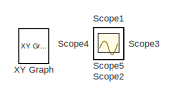
[diagram: root canvas - part 1/2, top right region]
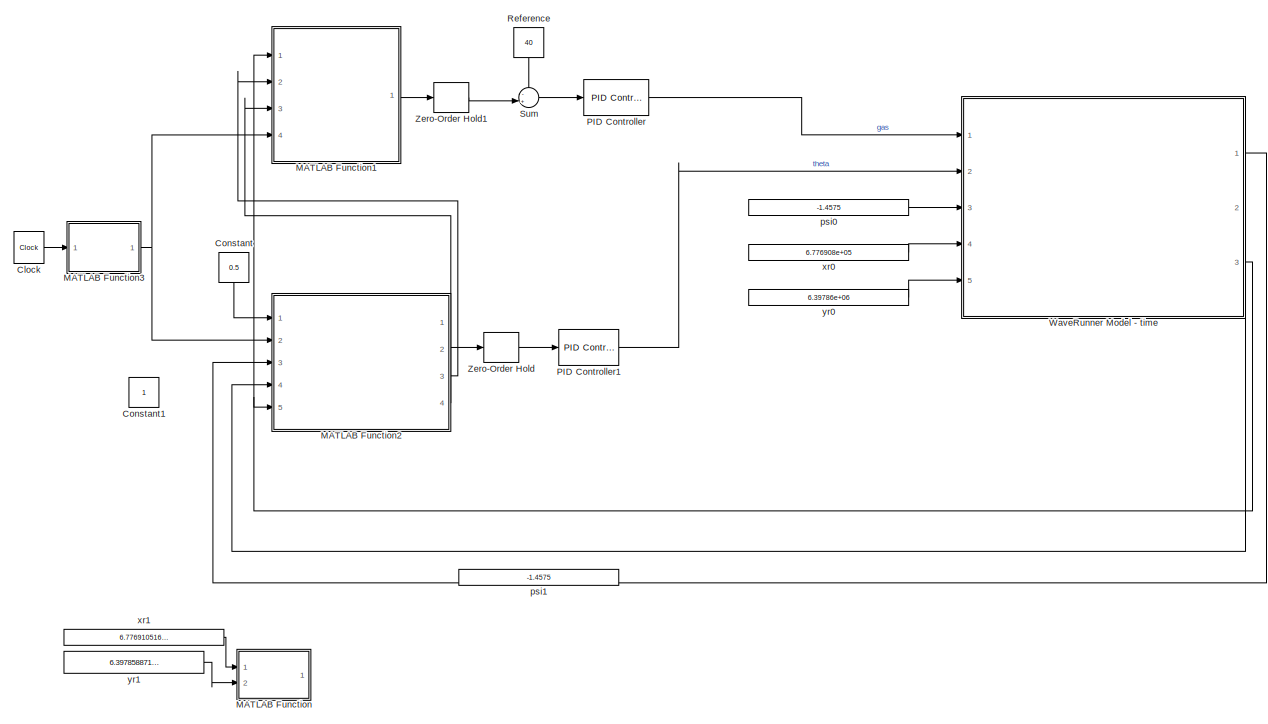
[diagram: root canvas - part 2/2, full width, middle band]
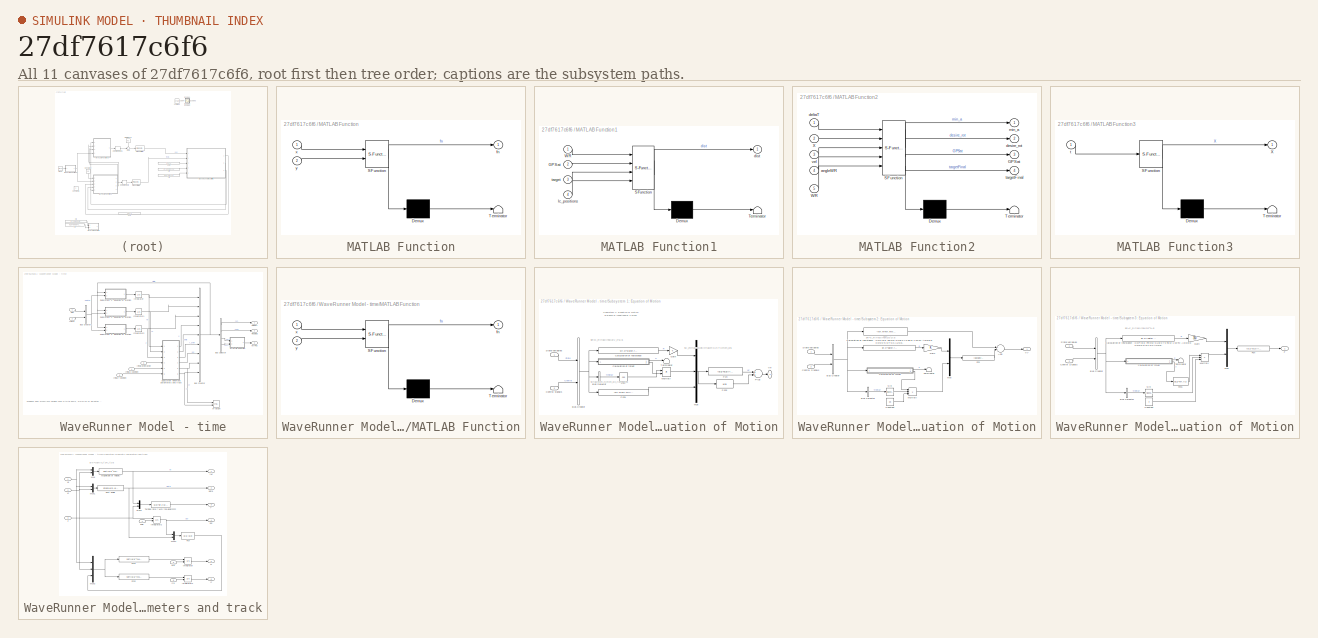
[diagram: thumbnail index - all 11 canvases of the model, root first then tree order]
MODEL slx_27df7617c6f6
KIND model
CONFIG AbsTol = auto
CONFIG EnableMultiTasking = off
CONFIG FixedStep = 1
CONFIG MaxStep = 10.0
CONFIG MinStep = auto
CONFIG RelTol = 1e-3
CONFIG SampleTimeConstraint = Unconstrained
CONFIG Solver = VariableStepAuto
CONFIG SolverName = VariableStepAuto
CONFIG StartTime = 0.0
CONFIG StopTime = 20
BLOCK [Clock] Clock
  Decimation = 1000
  DisplayTime = on
BLOCK [Constant] Constant
  Value = 0.5
BLOCK [Constant] Constant1
BLOCK [SubSystem] MATLAB Function
  ErrorFcn = Stateflow.Translate.translate
  PermitHierarchicalResolution = ExplicitOnly
  Ports = [2, 1]
  RequestExecContextInheritance = off
  SFBlockType = MATLAB Function
  TreatAsAtomicUnit = on
BLOCK [Demux] MATLAB Function/ Demux 
  Outputs = 1
  Ports = [1, 1]
BLOCK [S-Function] MATLAB Function/ SFunction 
  EnableBusSupport = on
  FunctionName = sf_sfun
  PortCounts = [2 2]
  Ports = [2, 2]
  SFcnIsStateOwnerBlock = off
  SFunctionDeploymentMode = off
  Tag = Stateflow S-Function wr_model 5
BLOCK [Terminator] MATLAB Function/ Terminator 
BLOCK [Outport] MATLAB Function/fn
  IconDisplay = Port number
BLOCK [Inport] MATLAB Function/x
  IconDisplay = Port number
BLOCK [Inport] MATLAB Function/y
  IconDisplay = Port number
  Port = 2
BLOCK [SubSystem] MATLAB Function1
  ErrorFcn = Stateflow.Translate.translate
  PermitHierarchicalResolution = ExplicitOnly
  Ports = [4, 1]
  RequestExecContextInheritance = off
  SFBlockType = MATLAB Function
  TreatAsAtomicUnit = on
BLOCK [Demux] MATLAB Function1/ Demux 
  Outputs = 1
  Ports = [1, 1]
BLOCK [S-Function] MATLAB Function1/ SFunction 
  EnableBusSupport = on
  FunctionName = sf_sfun
  PortCounts = [4 2]
  Ports = [4, 2]
  SFcnIsStateOwnerBlock = off
  SFunctionDeploymentMode = off
  Tag = Stateflow S-Function wr_model 1
BLOCK [Terminator] MATLAB Function1/ Terminator 
BLOCK [Inport] MATLAB Function1/GPSat
  IconDisplay = Port number
  Port = 2
BLOCK [Inport] MATLAB Function1/WR
  IconDisplay = Port number
BLOCK [Outport] MATLAB Function1/dist
  IconDisplay = Port number
BLOCK [Inport] MATLAB Function1/lc_positions
  IconDisplay = Port number
  Port = 4
BLOCK [Inport] MATLAB Function1/target
  IconDisplay = Port number
  Port = 3
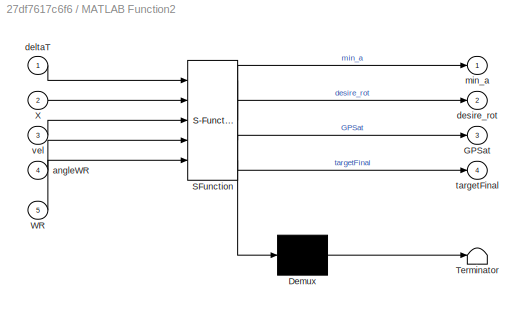
BLOCK [SubSystem] MATLAB Function2
  ErrorFcn = Stateflow.Translate.translate
  PermitHierarchicalResolution = ExplicitOnly
  Ports = [5, 4]
  RequestExecContextInheritance = off
  SFBlockType = MATLAB Function
  TreatAsAtomicUnit = on
BLOCK [Demux] MATLAB Function2/ Demux 
  Outputs = 1
  Ports = [1, 1]
BLOCK [S-Function] MATLAB Function2/ SFunction 
  EnableBusSupport = on
  FunctionName = sf_sfun
  PortCounts = [5 5]
  Ports = [5, 5]
  SFcnIsStateOwnerBlock = off
  SFunctionDeploymentMode = off
  Tag = Stateflow S-Function wr_model 3
BLOCK [Terminator] MATLAB Function2/ Terminator 
BLOCK [Outport] MATLAB Function2/GPSat
  IconDisplay = Port number
  Port = 3
BLOCK [Inport] MATLAB Function2/WR
  IconDisplay = Port number
  Port = 5
BLOCK [Inport] MATLAB Function2/X
  IconDisplay = Port number
  Port = 2
BLOCK [Inport] MATLAB Function2/angleWR
  IconDisplay = Port number
  Port = 4
BLOCK [Inport] MATLAB Function2/deltaT
  IconDisplay = Port number
BLOCK [Outport] MATLAB Function2/desire_rot
  IconDisplay = Port number
  Port = 2
BLOCK [Outport] MATLAB Function2/min_a
  IconDisplay = Port number
BLOCK [Outport] MATLAB Function2/targetFinal
  IconDisplay = Port number
  Port = 4
BLOCK [Inport] MATLAB Function2/vel
  IconDisplay = Port number
  Port = 3
BLOCK [SubSystem] MATLAB Function3
  ErrorFcn = Stateflow.Translate.translate
  PermitHierarchicalResolution = ExplicitOnly
  Ports = [1, 1]
  RequestExecContextInheritance = off
  SFBlockType = MATLAB Function
  TreatAsAtomicUnit = on
BLOCK [Demux] MATLAB Function3/ Demux 
  Outputs = 1
  Ports = [1, 1]
BLOCK [S-Function] MATLAB Function3/ SFunction 
  EnableBusSupport = on
  FunctionName = sf_sfun
  PortCounts = [1 2]
  Ports = [1, 2]
  SFcnIsStateOwnerBlock = off
  SFunctionDeploymentMode = off
  Tag = Stateflow S-Function wr_model 4
BLOCK [Terminator] MATLAB Function3/ Terminator 
BLOCK [Outport] MATLAB Function3/X
  IconDisplay = Port number
BLOCK [Inport] MATLAB Function3/t
  IconDisplay = Port number
BLOCK [Reference] PID Controller  REF=simulink/Continuous/PID Controller
  Ports = [1, 1]
  SourceBlock = simulink/Continuous/PID Controller
  SourceProductBaseCode = SL
  SourceProductName = Simulink
  SourceType = PID 1dof
BLOCK [Reference] PID Controller1  REF=simulink/Continuous/PID Controller
  Ports = [1, 1]
  SourceBlock = simulink/Continuous/PID Controller
  SourceProductBaseCode = SL
  SourceProductName = Simulink
  SourceType = PID 1dof
BLOCK [Constant] Reference
  Value = 40
BLOCK [Scope] Scope
  Floating = off
  IOType = viewer
  NumInputPorts = 1
  Ports = []
  ScopeSpecificationString = Simulink.scopes.TimeScopeBlockCfg('CurrentConfiguration', extmgr.ConfigurationSet(extmgr.Configuration('Core','General UI',true),extmgr.Configuration('Core','Source UI',true),extmgr.Configuration('Sources','WiredSimulink',true,'DataLoggingVariableName','ScopeData2'),extmgr.Configuration('Visuals','Time Domain',true,'SerializedDisplays',{struct('MinYLimReal','-20.83991','MaxYLimReal','35.83305','YL...<+1482ch>
BLOCK [Scope] Scope1
  Floating = off
  IOType = viewer
  NumInputPorts = 1
  Ports = []
  ScopeSpecificationString = Simulink.scopes.TimeScopeBlockCfg('CurrentConfiguration', extmgr.ConfigurationSet(extmgr.Configuration('Core','General UI',true),extmgr.Configuration('Core','Source UI',true),extmgr.Configuration('Sources','WiredSimulink',true),extmgr.Configuration('Visuals','Time Domain',true,'SerializedDisplays',{struct('MinYLimReal','0.39944','MaxYLimReal','2.39944','YLabelReal','','MinYLimMag','0.39944','MaxYL...<+1372ch>
BLOCK [Scope] Scope2
  Floating = off
  IOType = viewer
  NumInputPorts = 1
  Ports = []
  ScopeSpecificationString = Simulink.scopes.TimeScopeBlockCfg('CurrentConfiguration', extmgr.ConfigurationSet(extmgr.Configuration('Core','General UI',true),extmgr.Configuration('Core','Source UI',true),extmgr.Configuration('Sources','WiredSimulink',true,'DataLoggingVariableName','ScopeData1'),extmgr.Configuration('Visuals','Time Domain',true,'SerializedDisplays',{struct('MinYLimReal','-1.00000','MaxYLimReal','1.00000','YLab...<+1544ch>
BLOCK [Scope] Scope3
  Floating = off
  IOType = viewer
  NumInputPorts = 1
  Ports = []
  ScopeSpecificationString = Simulink.scopes.TimeScopeBlockCfg('CurrentConfiguration', extmgr.ConfigurationSet(extmgr.Configuration('Core','General UI',true),extmgr.Configuration('Core','Source UI',true),extmgr.Configuration('Sources','WiredSimulink',true,'DataLoggingVariableName','ScopeData1'),extmgr.Configuration('Visuals','Time Domain',true,'SerializedDisplays',{struct('MinYLimReal','-0.12506','MaxYLimReal','1.12501','YLab...<+1500ch>
BLOCK [Scope] Scope4
  Floating = off
  IOType = viewer
  NumInputPorts = 1
  Ports = []
  ScopeSpecificationString = Simulink.scopes.TimeScopeBlockCfg('CurrentConfiguration', extmgr.ConfigurationSet(extmgr.Configuration('Core','General UI',true),extmgr.Configuration('Core','Source UI',true),extmgr.Configuration('Sources','WiredSimulink',true,'DataLoggingVariableName','ScopeData2'),extmgr.Configuration('Visuals','Time Domain',true,'SerializedDisplays',{struct('MinYLimReal','-799732.35899','MaxYLimReal','7197591.2...<+1727ch>
BLOCK [Scope] Scope5
  Floating = off
  IOType = viewer
  NumInputPorts = 1
  Ports = []
  ScopeSpecificationString = Simulink.scopes.TimeScopeBlockCfg('CurrentConfiguration', extmgr.ConfigurationSet(extmgr.Configuration('Core','General UI',true),extmgr.Configuration('Core','Source UI',true),extmgr.Configuration('Sources','WiredSimulink',true,'DataLoggingVariableName','ScopeData1'),extmgr.Configuration('Visuals','Time Domain',true,'SerializedDisplays',{struct('MinYLimReal','-1.00000','MaxYLimReal','1.00000','YLab...<+1385ch>
BLOCK [Sum] Sum
  IconShape = round
  InputSameDT = off
  Inputs = -+|
  OutDataTypeStr = Inherit: Inherit via internal rule
  Ports = [2, 1]
  SaturateOnIntegerOverflow = off
BLOCK [SubSystem] WaveRunner Model - time
  Ports = [5, 3]
  RequestExecContextInheritance = off
BLOCK [BusCreator] WaveRunner Model - time/Bus Creator
  DisplayOption = bar
  InheritFromInputs = on
  Inputs = 9
  Ports = [9, 1]
BLOCK [BusCreator] WaveRunner Model - time/Bus Creator1
  DisplayOption = bar
  InheritFromInputs = on
  Inputs = 2
  Ports = [2, 1]
BLOCK [BusSelector] WaveRunner Model - time/Bus Selector
  OutputAsBus = off
  OutputSignals = V,psi,xr,yr
  Ports = [1, 4]
BLOCK [Inport] WaveRunner Model - time/Gas
  IconDisplay = Port number
BLOCK [Outport] WaveRunner Model - time/Heading
  IconDisplay = Port number
  Port = 2
BLOCK [Inport] WaveRunner Model - time/Initial X position
  IconDisplay = Port number
  Port = 4
BLOCK [Inport] WaveRunner Model - time/Initial Y position
  IconDisplay = Port number
  Port = 5
BLOCK [Inport] WaveRunner Model - time/Initial orientation
  IconDisplay = Port number
  Port = 3
BLOCK [Integrator] WaveRunner Model - time/Integrator
  Ports = [1, 1]
BLOCK [Integrator] WaveRunner Model - time/Integrator1
  Ports = [1, 1]
BLOCK [Integrator] WaveRunner Model - time/Integrator2
  Ports = [1, 1]
BLOCK [SubSystem] WaveRunner Model - time/MATLAB Function
  ErrorFcn = Stateflow.Translate.translate
  PermitHierarchicalResolution = ExplicitOnly
  Ports = [2, 1]
  RequestExecContextInheritance = off
  SFBlockType = MATLAB Function
  TreatAsAtomicUnit = on
BLOCK [Demux] WaveRunner Model - time/MATLAB Function/ Demux 
  Outputs = 1
  Ports = [1, 1]
BLOCK [S-Function] WaveRunner Model - time/MATLAB Function/ SFunction 
  EnableBusSupport = on
  FunctionName = sf_sfun
  PortCounts = [2 2]
  Ports = [2, 2]
  SFcnIsStateOwnerBlock = off
  SFunctionDeploymentMode = off
  Tag = Stateflow S-Function wr_model 2
BLOCK [Terminator] WaveRunner Model - time/MATLAB Function/ Terminator 
BLOCK [Outport] WaveRunner Model - time/MATLAB Function/fn
  IconDisplay = Port number
BLOCK [Inport] WaveRunner Model - time/MATLAB Function/x
  IconDisplay = Port number
BLOCK [Inport] WaveRunner Model - time/MATLAB Function/y
  IconDisplay = Port number
  Port = 2
BLOCK [SubSystem] WaveRunner Model - time/Subsystem 1: Equation of Motion
  Ports = [2, 1]
  RequestExecContextInheritance = off
BLOCK [BusCreator] WaveRunner Model - time/Subsystem 1: Equation of Motion/Bus Creator
  DisplayOption = bar
  InheritFromInputs = on
  Inputs = 2
  OutDataTypeStr = Bus: slBus1
  Ports = [2, 1]
BLOCK [BusSelector] WaveRunner Model - time/Subsystem 1: Equation of Motion/Bus Selector
  OutputAsBus = off
  OutputSignals = Control.theta
  Ports = [1, 1]
BLOCK [Fcn] WaveRunner Model - time/Subsystem 1: Equation of Motion/Calculation of resistance
  Expr = wr.cr*water.rho/2*(wr.Al/(1+u[1]))*u[1]^2
BLOCK [ModelReference] WaveRunner Model - time/Subsystem 1: Equation of Motion/Calculation of thrust
  ModelNameDialog = calculation_of_thrust
  ModelReferenceVersion = 1.28
  Ports = [1, 2]
BLOCK [Inport] WaveRunner Model - time/Subsystem 1: Equation of Motion/Control signals
  IconDisplay = Port number
  Port = 2
BLOCK [Trigonometry] WaveRunner Model - time/Subsystem 1: Equation of Motion/Cos
  Operator = cos
  Ports = [1, 1]
BLOCK [Fcn] WaveRunner Model - time/Subsystem 1: Equation of Motion/Fcn
  Expr = (u[1]+u[2])/(wr.m+wr.mx)
BLOCK [Fcn] WaveRunner Model - time/Subsystem 1: Equation of Motion/Fcn1
  Expr = (wr.m+wr.my)/(wr.m+wr.mx)*u[2]*u[3]
BLOCK [Fcn] WaveRunner Model - time/Subsystem 1: Equation of Motion/Fcn2
  Expr = u[3]
BLOCK [Gain] WaveRunner Model - time/Subsystem 1: Equation of Motion/Gain
  Gain = 5
  OutDataTypeStr = Inherit: Inherit via internal rule
  ParamDataTypeStr = Inherit: Inherit via internal rule
  SaturateOnIntegerOverflow = off
BLOCK [Product] WaveRunner Model - time/Subsystem 1: Equation of Motion/Multiply
  InputSameDT = off
  OutDataTypeStr = Inherit: Inherit via internal rule
  Ports = [2, 1]
  RndMeth = Floor
  SaturateOnIntegerOverflow = off
BLOCK [Mux] WaveRunner Model - time/Subsystem 1: Equation of Motion/Mux
  DisplayOption = bar
  Inputs = 3
  Ports = [3, 1]
BLOCK [Sum] WaveRunner Model - time/Subsystem 1: Equation of Motion/Plus
  InputSameDT = off
  OutDataTypeStr = Inherit: Inherit via internal rule
  Ports = [2, 1]
  SaturateOnIntegerOverflow = off
BLOCK [Inport] WaveRunner Model - time/Subsystem 1: Equation of Motion/State variables
  IconDisplay = Port number
BLOCK [Terminator] WaveRunner Model - time/Subsystem 1: Equation of Motion/Terminator
BLOCK [Outport] WaveRunner Model - time/Subsystem 1: Equation of Motion/Vx'
  IconDisplay = Port number
BLOCK [SubSystem] WaveRunner Model - time/Subsystem 2: Equation of Motion
  Ports = [2, 1]
  RequestExecContextInheritance = off
BLOCK [Sum] WaveRunner Model - time/Subsystem 2: Equation of Motion/Add
  InputSameDT = off
  OutDataTypeStr = Inherit: Inherit via internal rule
  Ports = [2, 1]
  SaturateOnIntegerOverflow = off
BLOCK [BusCreator] WaveRunner Model - time/Subsystem 2: Equation of Motion/Bus Creator
  DisplayOption = bar
  InheritFromInputs = on
  Inputs = 2
  Ports = [2, 1]
BLOCK [BusSelector] WaveRunner Model - time/Subsystem 2: Equation of Motion/Bus Selector
  OutputAsBus = off
  OutputSignals = Control.theta
  Ports = [1, 1]
BLOCK [Fcn] WaveRunner Model - time/Subsystem 2: Equation of Motion/Calculation of resistance - COPIED FROM SUBSYSTEM 1 WITH ADDED CONSTANT SCALING.
  Expr = wr.cr*water.rho/2*wr.Al*u[2]
BLOCK [ModelReference] WaveRunner Model - time/Subsystem 2: Equation of Motion/Calculation of thrust
  ModelNameDialog = calculation_of_thrust
  ModelReferenceVersion = 1.28
  Ports = [1, 2]
BLOCK [Constant] WaveRunner Model - time/Subsystem 2: Equation of Motion/Constant
  Value = 0.9
BLOCK [Inport] WaveRunner Model - time/Subsystem 2: Equation of Motion/Control Signals
  IconDisplay = Port number
  Port = 2
BLOCK [Fcn] WaveRunner Model - time/Subsystem 2: Equation of Motion/Fcn
  Expr = (u[1]+u[2])/(wr.m+wr.my)
BLOCK [Fcn] WaveRunner Model - time/Subsystem 2: Equation of Motion/Fcn1
  Expr = -(wr.m+wr.mx)/(wr.m+wr.my)*u[1]*u[3]
BLOCK [Gain] WaveRunner Model - time/Subsystem 2: Equation of Motion/Gain
  OutDataTypeStr = Inherit: Inherit via internal rule
  ParamDataTypeStr = Inherit: Inherit via internal rule
  SaturateOnIntegerOverflow = off
BLOCK [Product] WaveRunner Model - time/Subsystem 2: Equation of Motion/Multiply
  InputSameDT = off
  Inputs = 3
  OutDataTypeStr = Inherit: Inherit via internal rule
  Ports = [3, 1]
  RndMeth = Floor
  SaturateOnIntegerOverflow = off
BLOCK [Mux] WaveRunner Model - time/Subsystem 2: Equation of Motion/Mux
  DisplayOption = bar
  Inputs = 2
  Ports = [2, 1]
BLOCK [Trigonometry] WaveRunner Model - time/Subsystem 2: Equation of Motion/Sin
  Ports = [1, 1]
BLOCK [Inport] WaveRunner Model - time/Subsystem 2: Equation of Motion/State variables
  IconDisplay = Port number
BLOCK [Terminator] WaveRunner Model - time/Subsystem 2: Equation of Motion/Terminator
BLOCK [Outport] WaveRunner Model - time/Subsystem 2: Equation of Motion/Vy'
  IconDisplay = Port number
BLOCK [SubSystem] WaveRunner Model - time/Subsystem 3: Equation of Motion
  Ports = [2, 1]
  RequestExecContextInheritance = off
BLOCK [BusCreator] WaveRunner Model - time/Subsystem 3: Equation of Motion/Bus Creator
  DisplayOption = bar
  InheritFromInputs = on
  Inputs = 2
  Ports = [2, 1]
BLOCK [BusSelector] WaveRunner Model - time/Subsystem 3: Equation of Motion/Bus Selector
  OutputAsBus = off
  OutputSignals = Control.theta
  Ports = [1, 1]
BLOCK [Fcn] WaveRunner Model - time/Subsystem 3: Equation of Motion/Calculation of resistance - COPIED FROM SUBSYSTEM 1 WITH ADDED CONSTANT SCALING.
  Expr = wr.cr*(water.rho/2)*wr.Al*u[3]
BLOCK [ModelReference] WaveRunner Model - time/Subsystem 3: Equation of Motion/Calculation of thrust
  ModelNameDialog = calculation_of_thrust
  ModelReferenceVersion = 1.28
  Ports = [1, 2]
BLOCK [Constant] WaveRunner Model - time/Subsystem 3: Equation of Motion/Constant
  Value = 2
BLOCK [Inport] WaveRunner Model - time/Subsystem 3: Equation of Motion/Control Signals
  IconDisplay = Port number
  Port = 2
BLOCK [Fcn] WaveRunner Model - time/Subsystem 3: Equation of Motion/Fcn
  Expr = (u[1]+u[2])/(wr.I+wr.Iz)
BLOCK [Fcn] WaveRunner Model - time/Subsystem 3: Equation of Motion/Fcn1
  Expr = u[1]*wr.l/2
BLOCK [Gain] WaveRunner Model - time/Subsystem 3: Equation of Motion/Gain
  Gain = 350
  OutDataTypeStr = Inherit: Inherit via internal rule
  ParamDataTypeStr = Inherit: Inherit via internal rule
  SaturateOnIntegerOverflow = off
BLOCK [Product] WaveRunner Model - time/Subsystem 3: Equation of Motion/Multiply
  InputSameDT = off
  Inputs = 3
  OutDataTypeStr = Inherit: Inherit via internal rule
  Ports = [3, 1]
  RndMeth = Floor
  SaturateOnIntegerOverflow = off
BLOCK [Mux] WaveRunner Model - time/Subsystem 3: Equation of Motion/Mux
  DisplayOption = bar
  Inputs = 2
  Ports = [2, 1]
BLOCK [Trigonometry] WaveRunner Model - time/Subsystem 3: Equation of Motion/Sin
  Ports = [1, 1]
BLOCK [Inport] WaveRunner Model - time/Subsystem 3: Equation of Motion/State variables
  IconDisplay = Port number
BLOCK [Terminator] WaveRunner Model - time/Subsystem 3: Equation of Motion/Terminator
BLOCK [Outport] WaveRunner Model - time/Subsystem 3: Equation of Motion/z'
  IconDisplay = Port number
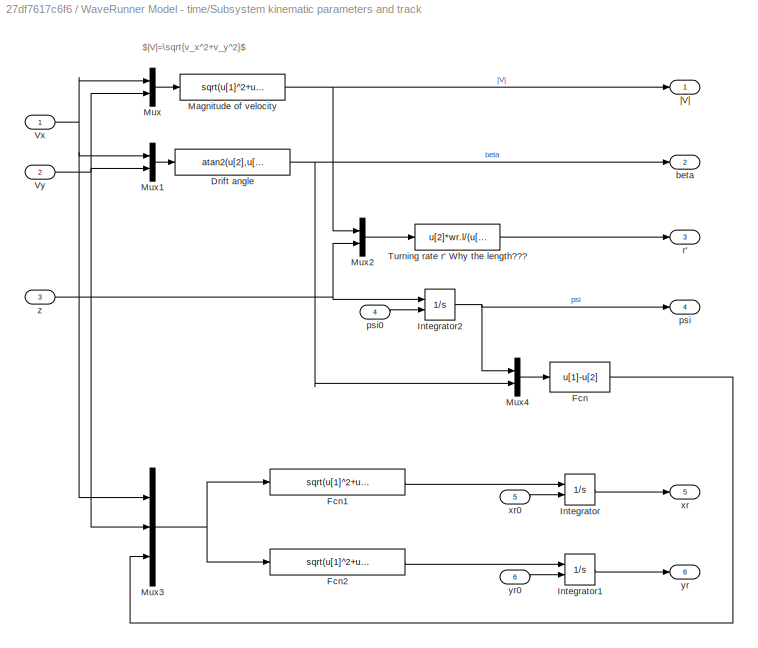
BLOCK [SubSystem] WaveRunner Model - time/Subsystem kinematic parameters and track
  Ports = [6, 6]
  RequestExecContextInheritance = off
BLOCK [Fcn] WaveRunner Model - time/Subsystem kinematic parameters and track/Drift angle
  Expr = atan2(u[2],u[1])*pi/180
BLOCK [Fcn] WaveRunner Model - time/Subsystem kinematic parameters and track/Fcn
  Expr = u[1]-u[2]
BLOCK [Fcn] WaveRunner Model - time/Subsystem kinematic parameters and track/Fcn1
  Expr = sqrt(u[1]^2+u[2]^2)*cos(u[3])
BLOCK [Fcn] WaveRunner Model - time/Subsystem kinematic parameters and track/Fcn2
  Expr = sqrt(u[1]^2+u[2]^2)*sin(u[3])
BLOCK [Integrator] WaveRunner Model - time/Subsystem kinematic parameters and track/Integrator
  InitialConditionSource = external
  Ports = [2, 1]
BLOCK [Integrator] WaveRunner Model - time/Subsystem kinematic parameters and track/Integrator1
  InitialConditionSource = external
  Ports = [2, 1]
BLOCK [Integrator] WaveRunner Model - time/Subsystem kinematic parameters and track/Integrator2
  InitialConditionSource = external
  Ports = [2, 1]
BLOCK [Fcn] WaveRunner Model - time/Subsystem kinematic parameters and track/Magnitude of velocity
  Expr = sqrt(u[1]^2+u[2]^2)
BLOCK [Mux] WaveRunner Model - time/Subsystem kinematic parameters and track/Mux
  DisplayOption = bar
  Inputs = 2
  Ports = [2, 1]
BLOCK [Mux] WaveRunner Model - time/Subsystem kinematic parameters and track/Mux1
  DisplayOption = bar
  Inputs = 2
  Ports = [2, 1]
BLOCK [Mux] WaveRunner Model - time/Subsystem kinematic parameters and track/Mux2
  DisplayOption = bar
  Inputs = 2
  Ports = [2, 1]
BLOCK [Mux] WaveRunner Model - time/Subsystem kinematic parameters and track/Mux3
  DisplayOption = bar
  Inputs = 3
  Ports = [3, 1]
BLOCK [Mux] WaveRunner Model - time/Subsystem kinematic parameters and track/Mux4
  DisplayOption = bar
  Inputs = 2
  Ports = [2, 1]
BLOCK [Fcn] WaveRunner Model - time/Subsystem kinematic parameters and track/Turning rate r' Why the length???
  Expr = u[2]*wr.l/(u[1]+0.01)
BLOCK [Inport] WaveRunner Model - time/Subsystem kinematic parameters and track/Vx
  IconDisplay = Port number
BLOCK [Inport] WaveRunner Model - time/Subsystem kinematic parameters and track/Vy
  IconDisplay = Port number
  Port = 2
BLOCK [Outport] WaveRunner Model - time/Subsystem kinematic parameters and track/beta
  IconDisplay = Port number
  Port = 2
BLOCK [Outport] WaveRunner Model - time/Subsystem kinematic parameters and track/psi
  IconDisplay = Port number
  Port = 4
BLOCK [Inport] WaveRunner Model - time/Subsystem kinematic parameters and track/psi0
  IconDisplay = Port number
  Port = 4
BLOCK [Outport] WaveRunner Model - time/Subsystem kinematic parameters and track/r'
  IconDisplay = Port number
  Port = 3
BLOCK [Outport] WaveRunner Model - time/Subsystem kinematic parameters and track/xr
  IconDisplay = Port number
  Port = 5
BLOCK [Inport] WaveRunner Model - time/Subsystem kinematic parameters and track/xr0
  IconDisplay = Port number
  Port = 5
BLOCK [Outport] WaveRunner Model - time/Subsystem kinematic parameters and track/yr
  IconDisplay = Port number
  Port = 6
BLOCK [Inport] WaveRunner Model - time/Subsystem kinematic parameters and track/yr0
  IconDisplay = Port number
  Port = 6
BLOCK [Inport] WaveRunner Model - time/Subsystem kinematic parameters and track/z
  IconDisplay = Port number
  Port = 3
BLOCK [Outport] WaveRunner Model - time/Subsystem kinematic parameters and track/|V|
  IconDisplay = Port number
BLOCK [Outport] WaveRunner Model - time/Velocity
  IconDisplay = Port number
BLOCK [Outport] WaveRunner Model - time/WrPos
  IconDisplay = Port number
  Port = 3
BLOCK [Reference] WaveRunner Model - time/XY Graph  REF=simulink/Sinks/XY Graph
  Ports = [2]
  SourceBlock = simulink/Sinks/XY Graph
  SourceProductBaseCode = SL
  SourceProductName = Simulink
  SourceType = XY scope.
BLOCK [Inport] WaveRunner Model - time/theta
  IconDisplay = Port number
  Port = 2
BLOCK [Reference] XY Graph  REF=simulink/Sinks/XY Graph
  IOType = viewer
  Ports = [2]
  SourceBlock = simulink/Sinks/XY Graph
  SourceProductBaseCode = SL
  SourceProductName = Simulink
  SourceType = XY scope.
BLOCK [ZeroOrderHold] Zero-Order Hold
BLOCK [ZeroOrderHold] Zero-Order Hold1
BLOCK [Constant] psi0
  Value = -1.4575
BLOCK [Constant] psi1
  Value = -1.4575
BLOCK [Constant] xr0
  Value = 6.776908e+05
BLOCK [Constant] xr1
  Value = 6.776910516899229e+05
BLOCK [Constant] yr0
  Value = 6.39786e+06
BLOCK [Constant] yr1
  Value = 6.397858871921937e+06
ANNOTATION WaveRunner Model - time: Explaining Ships Dynami and Handling using MATLAB & SIMULINK as Simulation Tool in Teaching Maritime Students
ANNOTATION WaveRunner Model - time/Subsystem 1: Equation of Motion: Subsystem 1: Equation of Motion Balance of Longitudnial Forces
ANNOTATION WaveRunner Model - time/Subsystem 1: Equation of Motion: $R=C_R\frac{\rho}{2}V_x^2A$
ANNOTATION WaveRunner Model - time/Subsystem 1: Equation of Motion: $V_x'=\frac{dv}{dt}=\frac{R+(1-t)T}{m+m_x}$
ANNOTATION WaveRunner Model - time/Subsystem 1: Equation of Motion: $\frac{m+m_y}{m+m_x}v_y\omega_z$
ANNOTATION WaveRunner Model - time/Subsystem 2: Equation of Motion: $R=C_R\frac{\rho}{2}z^2A$
ANNOTATION WaveRunner Model - time/Subsystem 3: Equation of Motion: $R=C_R\frac{\rho}{2}z^2A$
ANNOTATION WaveRunner Model - time/Subsystem kinematic parameters and track: $|V|=\sqrt{v_x^2+v_y^2}$
LINE Clock:1 -> MATLAB Function3:1
LINE Constant:1 -> MATLAB Function2:1
LINE MATLAB Function1:1 -> Zero-Order Hold1:1
LINE MATLAB Function2:2 -> Zero-Order Hold:1
LINE MATLAB Function2:3 -> MATLAB Function1:2
LINE MATLAB Function2:4 -> MATLAB Function1:3
NET MATLAB Function3:1 -> MATLAB Function1:4, MATLAB Function2:2
LINE PID Controller1:1 -> WaveRunner Model - time:2
LINE PID Controller:1 -> WaveRunner Model - time:1
LINE Reference:1 -> Sum:1
LINE Sum:1 -> PID Controller:1
NET WaveRunner Model - time/Bus Creator1:1 -> WaveRunner Model - time/Subsystem 1: Equation of Motion:2, WaveRunner Model - time/Subsystem 2: Equation of Motion:2, WaveRunner Model - time/Subsystem 3: Equation of Motion:2
NET WaveRunner Model - time/Bus Creator:1 -> WaveRunner Model - time/Bus Selector:1, WaveRunner Model - time/Subsystem 1: Equation of Motion:1, WaveRunner Model - time/Subsystem 2: Equation of Motion:1, WaveRunner Model - time/Subsystem 3: Equation of Motion:1
LINE WaveRunner Model - time/Bus Selector:1 -> WaveRunner Model - time/Velocity:1
LINE WaveRunner Model - time/Bus Selector:2 -> WaveRunner Model - time/Heading:1
LINE WaveRunner Model - time/Bus Selector:3 -> WaveRunner Model - time/MATLAB Function:1
LINE WaveRunner Model - time/Bus Selector:4 -> WaveRunner Model - time/MATLAB Function:2
LINE WaveRunner Model - time/Gas:1 -> WaveRunner Model - time/Bus Creator1:1
LINE WaveRunner Model - time/Initial X position:1 -> WaveRunner Model - time/Subsystem kinematic parameters and track:5
LINE WaveRunner Model - time/Initial Y position:1 -> WaveRunner Model - time/Subsystem kinematic parameters and track:6
LINE WaveRunner Model - time/Initial orientation:1 -> WaveRunner Model - time/Subsystem kinematic parameters and track:4
NET WaveRunner Model - time/Integrator1:1 -> WaveRunner Model - time/Bus Creator:2, WaveRunner Model - time/Subsystem kinematic parameters and track:2
NET WaveRunner Model - time/Integrator2:1 -> WaveRunner Model - time/Bus Creator:3, WaveRunner Model - time/Subsystem kinematic parameters and track:3
NET WaveRunner Model - time/Integrator:1 -> WaveRunner Model - time/Bus Creator:1, WaveRunner Model - time/Subsystem kinematic parameters and track:1
LINE WaveRunner Model - time/MATLAB Function:1 -> WaveRunner Model - time/WrPos:1
NET WaveRunner Model - time/Subsystem 1: Equation of Motion/Bus Creator:1 -> WaveRunner Model - time/Subsystem 1: Equation of Motion/Bus Selector:1, WaveRunner Model - time/Subsystem 1: Equation of Motion/Calculation of resistance:1, WaveRunner Model - time/Subsystem 1: Equation of Motion/Calculation of thrust:1, WaveRunner Model - time/Subsystem 1: Equation of Motion/Fcn1:1
LINE WaveRunner Model - time/Subsystem 1: Equation of Motion/Bus Selector:1 -> WaveRunner Model - time/Subsystem 1: Equation of Motion/Cos:1
LINE WaveRunner Model - time/Subsystem 1: Equation of Motion/Calculation of resistance:1 -> WaveRunner Model - time/Subsystem 1: Equation of Motion/Gain:1
LINE WaveRunner Model - time/Subsystem 1: Equation of Motion/Calculation of thrust:1 -> WaveRunner Model - time/Subsystem 1: Equation of Motion/Terminator:1
LINE WaveRunner Model - time/Subsystem 1: Equation of Motion/Calculation of thrust:2 -> WaveRunner Model - time/Subsystem 1: Equation of Motion/Multiply:2
LINE WaveRunner Model - time/Subsystem 1: Equation of Motion/Control signals:1 -> WaveRunner Model - time/Subsystem 1: Equation of Motion/Bus Creator:2
LINE WaveRunner Model - time/Subsystem 1: Equation of Motion/Cos:1 -> WaveRunner Model - time/Subsystem 1: Equation of Motion/Multiply:1
LINE WaveRunner Model - time/Subsystem 1: Equation of Motion/Fcn1:1 -> WaveRunner Model - time/Subsystem 1: Equation of Motion/Mux:3
LINE WaveRunner Model - time/Subsystem 1: Equation of Motion/Fcn2:1 -> WaveRunner Model - time/Subsystem 1: Equation of Motion/Plus:2
LINE WaveRunner Model - time/Subsystem 1: Equation of Motion/Fcn:1 -> WaveRunner Model - time/Subsystem 1: Equation of Motion/Plus:1
LINE WaveRunner Model - time/Subsystem 1: Equation of Motion/Gain:1 -> WaveRunner Model - time/Subsystem 1: Equation of Motion/Mux:1
LINE WaveRunner Model - time/Subsystem 1: Equation of Motion/Multiply:1 -> WaveRunner Model - time/Subsystem 1: Equation of Motion/Mux:2
NET WaveRunner Model - time/Subsystem 1: Equation of Motion/Mux:1 -> WaveRunner Model - time/Subsystem 1: Equation of Motion/Fcn2:1, WaveRunner Model - time/Subsystem 1: Equation of Motion/Fcn:1
LINE WaveRunner Model - time/Subsystem 1: Equation of Motion/Plus:1 -> WaveRunner Model - time/Subsystem 1: Equation of Motion/Vx':1
LINE WaveRunner Model - time/Subsystem 1: Equation of Motion/State variables:1 -> WaveRunner Model - time/Subsystem 1: Equation of Motion/Bus Creator:1
LINE WaveRunner Model - time/Subsystem 1: Equation of Motion:1 -> WaveRunner Model - time/Integrator:1
LINE WaveRunner Model - time/Subsystem 2: Equation of Motion/Add:1 -> WaveRunner Model - time/Subsystem 2: Equation of Motion/Vy':1
NET WaveRunner Model - time/Subsystem 2: Equation of Motion/Bus Creator:1 -> WaveRunner Model - time/Subsystem 2: Equation of Motion/Bus Selector:1, WaveRunner Model - time/Subsystem 2: Equation of Motion/Calculation of resistance - COPIED FROM SUBSYSTEM 1 WITH ADDED CONSTANT SCALING.:1, WaveRunner Model - time/Subsystem 2: Equation of Motion/Calculation of thrust:1, WaveRunner Model - time/Subsystem 2: Equation of Motion/Fcn1:1
LINE WaveRunner Model - time/Subsystem 2: Equation of Motion/Bus Selector:1 -> WaveRunner Model - time/Subsystem 2: Equation of Motion/Sin:1
LINE WaveRunner Model - time/Subsystem 2: Equation of Motion/Calculation of resistance - COPIED FROM SUBSYSTEM 1 WITH ADDED CONSTANT SCALING.:1 -> WaveRunner Model - time/Subsystem 2: Equation of Motion/Gain:1
LINE WaveRunner Model - time/Subsystem 2: Equation of Motion/Calculation of thrust:1 -> WaveRunner Model - time/Subsystem 2: Equation of Motion/Terminator:1
LINE WaveRunner Model - time/Subsystem 2: Equation of Motion/Calculation of thrust:2 -> WaveRunner Model - time/Subsystem 2: Equation of Motion/Multiply:1
LINE WaveRunner Model - time/Subsystem 2: Equation of Motion/Constant:1 -> WaveRunner Model - time/Subsystem 2: Equation of Motion/Multiply:3
LINE WaveRunner Model - time/Subsystem 2: Equation of Motion/Control Signals:1 -> WaveRunner Model - time/Subsystem 2: Equation of Motion/Bus Creator:2
LINE WaveRunner Model - time/Subsystem 2: Equation of Motion/Fcn1:1 -> WaveRunner Model - time/Subsystem 2: Equation of Motion/Add:1
LINE WaveRunner Model - time/Subsystem 2: Equation of Motion/Fcn:1 -> WaveRunner Model - time/Subsystem 2: Equation of Motion/Add:2
LINE WaveRunner Model - time/Subsystem 2: Equation of Motion/Gain:1 -> WaveRunner Model - time/Subsystem 2: Equation of Motion/Mux:1
LINE WaveRunner Model - time/Subsystem 2: Equation of Motion/Multiply:1 -> WaveRunner Model - time/Subsystem 2: Equation of Motion/Mux:2
LINE WaveRunner Model - time/Subsystem 2: Equation of Motion/Mux:1 -> WaveRunner Model - time/Subsystem 2: Equation of Motion/Fcn:1
LINE WaveRunner Model - time/Subsystem 2: Equation of Motion/Sin:1 -> WaveRunner Model - time/Subsystem 2: Equation of Motion/Multiply:2
LINE WaveRunner Model - time/Subsystem 2: Equation of Motion/State variables:1 -> WaveRunner Model - time/Subsystem 2: Equation of Motion/Bus Creator:1
LINE WaveRunner Model - time/Subsystem 2: Equation of Motion:1 -> WaveRunner Model - time/Integrator1:1
NET WaveRunner Model - time/Subsystem 3: Equation of Motion/Bus Creator:1 -> WaveRunner Model - time/Subsystem 3: Equation of Motion/Bus Selector:1, WaveRunner Model - time/Subsystem 3: Equation of Motion/Calculation of resistance - COPIED FROM SUBSYSTEM 1 WITH ADDED CONSTANT SCALING.:1, WaveRunner Model - time/Subsystem 3: Equation of Motion/Calculation of thrust:1
LINE WaveRunner Model - time/Subsystem 3: Equation of Motion/Bus Selector:1 -> WaveRunner Model - time/Subsystem 3: Equation of Motion/Sin:1
LINE WaveRunner Model - time/Subsystem 3: Equation of Motion/Calculation of resistance - COPIED FROM SUBSYSTEM 1 WITH ADDED CONSTANT SCALING.:1 -> WaveRunner Model - time/Subsystem 3: Equation of Motion/Gain:1
LINE WaveRunner Model - time/Subsystem 3: Equation of Motion/Calculation of thrust:1 -> WaveRunner Model - time/Subsystem 3: Equation of Motion/Terminator:1
LINE WaveRunner Model - time/Subsystem 3: Equation of Motion/Calculation of thrust:2 -> WaveRunner Model - time/Subsystem 3: Equation of Motion/Fcn1:1
LINE WaveRunner Model - time/Subsystem 3: Equation of Motion/Constant:1 -> WaveRunner Model - time/Subsystem 3: Equation of Motion/Multiply:3
LINE WaveRunner Model - time/Subsystem 3: Equation of Motion/Control Signals:1 -> WaveRunner Model - time/Subsystem 3: Equation of Motion/Bus Creator:2
LINE WaveRunner Model - time/Subsystem 3: Equation of Motion/Fcn1:1 -> WaveRunner Model - time/Subsystem 3: Equation of Motion/Multiply:1
LINE WaveRunner Model - time/Subsystem 3: Equation of Motion/Fcn:1 -> WaveRunner Model - time/Subsystem 3: Equation of Motion/z':1
LINE WaveRunner Model - time/Subsystem 3: Equation of Motion/Gain:1 -> WaveRunner Model - time/Subsystem 3: Equation of Motion/Mux:1
LINE WaveRunner Model - time/Subsystem 3: Equation of Motion/Multiply:1 -> WaveRunner Model - time/Subsystem 3: Equation of Motion/Mux:2
LINE WaveRunner Model - time/Subsystem 3: Equation of Motion/Mux:1 -> WaveRunner Model - time/Subsystem 3: Equation of Motion/Fcn:1
LINE WaveRunner Model - time/Subsystem 3: Equation of Motion/Sin:1 -> WaveRunner Model - time/Subsystem 3: Equation of Motion/Multiply:2
LINE WaveRunner Model - time/Subsystem 3: Equation of Motion/State variables:1 -> WaveRunner Model - time/Subsystem 3: Equation of Motion/Bus Creator:1
LINE WaveRunner Model - time/Subsystem 3: Equation of Motion:1 -> WaveRunner Model - time/Integrator2:1
NET WaveRunner Model - time/Subsystem kinematic parameters and track/Drift angle:1 -> WaveRunner Model - time/Subsystem kinematic parameters and track/Mux4:2, WaveRunner Model - time/Subsystem kinematic parameters and track/beta:1
LINE WaveRunner Model - time/Subsystem kinematic parameters and track/Fcn1:1 -> WaveRunner Model - time/Subsystem kinematic parameters and track/Integrator:1
LINE WaveRunner Model - time/Subsystem kinematic parameters and track/Fcn2:1 -> WaveRunner Model - time/Subsystem kinematic parameters and track/Integrator1:1
LINE WaveRunner Model - time/Subsystem kinematic parameters and track/Fcn:1 -> WaveRunner Model - time/Subsystem kinematic parameters and track/Mux3:3
LINE WaveRunner Model - time/Subsystem kinematic parameters and track/Integrator1:1 -> WaveRunner Model - time/Subsystem kinematic parameters and track/yr:1
NET WaveRunner Model - time/Subsystem kinematic parameters and track/Integrator2:1 -> WaveRunner Model - time/Subsystem kinematic parameters and track/Mux4:1, WaveRunner Model - time/Subsystem kinematic parameters and track/psi:1
LINE WaveRunner Model - time/Subsystem kinematic parameters and track/Integrator:1 -> WaveRunner Model - time/Subsystem kinematic parameters and track/xr:1
NET WaveRunner Model - time/Subsystem kinematic parameters and track/Magnitude of velocity:1 -> WaveRunner Model - time/Subsystem kinematic parameters and track/Mux2:1, WaveRunner Model - time/Subsystem kinematic parameters and track/|V|:1
LINE WaveRunner Model - time/Subsystem kinematic parameters and track/Mux1:1 -> WaveRunner Model - time/Subsystem kinematic parameters and track/Drift angle:1
LINE WaveRunner Model - time/Subsystem kinematic parameters and track/Mux2:1 -> WaveRunner Model - time/Subsystem kinematic parameters and track/Turning rate r' Why the length???:1
NET WaveRunner Model - time/Subsystem kinematic parameters and track/Mux3:1 -> WaveRunner Model - time/Subsystem kinematic parameters and track/Fcn1:1, WaveRunner Model - time/Subsystem kinematic parameters and track/Fcn2:1
LINE WaveRunner Model - time/Subsystem kinematic parameters and track/Mux4:1 -> WaveRunner Model - time/Subsystem kinematic parameters and track/Fcn:1
LINE WaveRunner Model - time/Subsystem kinematic parameters and track/Mux:1 -> WaveRunner Model - time/Subsystem kinematic parameters and track/Magnitude of velocity:1
LINE WaveRunner Model - time/Subsystem kinematic parameters and track/Turning rate r' Why the length???:1 -> WaveRunner Model - time/Subsystem kinematic parameters and track/r':1
NET WaveRunner Model - time/Subsystem kinematic parameters and track/Vx:1 -> WaveRunner Model - time/Subsystem kinematic parameters and track/Mux1:1, WaveRunner Model - time/Subsystem kinematic parameters and track/Mux3:1, WaveRunner Model - time/Subsystem kinematic parameters and track/Mux:1
NET WaveRunner Model - time/Subsystem kinematic parameters and track/Vy:1 -> WaveRunner Model - time/Subsystem kinematic parameters and track/Mux1:2, WaveRunner Model - time/Subsystem kinematic parameters and track/Mux3:2, WaveRunner Model - time/Subsystem kinematic parameters and track/Mux:2
LINE WaveRunner Model - time/Subsystem kinematic parameters and track/psi0:1 -> WaveRunner Model - time/Subsystem kinematic parameters and track/Integrator2:2
LINE WaveRunner Model - time/Subsystem kinematic parameters and track/xr0:1 -> WaveRunner Model - time/Subsystem kinematic parameters and track/Integrator:2
LINE WaveRunner Model - time/Subsystem kinematic parameters and track/yr0:1 -> WaveRunner Model - time/Subsystem kinematic parameters and track/Integrator1:2
NET WaveRunner Model - time/Subsystem kinematic parameters and track/z:1 -> WaveRunner Model - time/Subsystem kinematic parameters and track/Integrator2:1, WaveRunner Model - time/Subsystem kinematic parameters and track/Mux2:2
LINE WaveRunner Model - time/Subsystem kinematic parameters and track:1 -> WaveRunner Model - time/Bus Creator:4
LINE WaveRunner Model - time/Subsystem kinematic parameters and track:2 -> WaveRunner Model - time/Bus Creator:5
LINE WaveRunner Model - time/Subsystem kinematic parameters and track:3 -> WaveRunner Model - time/Bus Creator:6
LINE WaveRunner Model - time/Subsystem kinematic parameters and track:4 -> WaveRunner Model - time/Bus Creator:7
NET WaveRunner Model - time/Subsystem kinematic parameters and track:5 -> WaveRunner Model - time/Bus Creator:8, WaveRunner Model - time/XY Graph:1
NET WaveRunner Model - time/Subsystem kinematic parameters and track:6 -> WaveRunner Model - time/Bus Creator:9, WaveRunner Model - time/XY Graph:2
LINE WaveRunner Model - time/theta:1 -> WaveRunner Model - time/Bus Creator1:2
LINE WaveRunner Model - time:1 -> MATLAB Function2:3
LINE WaveRunner Model - time:2 -> MATLAB Function2:4
NET WaveRunner Model - time:3 -> MATLAB Function1:1, MATLAB Function2:5
LINE Zero-Order Hold1:1 -> Sum:2
LINE Zero-Order Hold:1 -> PID Controller1:1
LINE psi0:1 -> WaveRunner Model - time:3
LINE xr0:1 -> WaveRunner Model - time:4
LINE xr1:1 -> MATLAB Function:1
LINE yr0:1 -> WaveRunner Model - time:5
LINE yr1:1 -> MATLAB Function:2
note: NET lines group one-source signal fan-out (src -> all destinations, sorted); 1:1 wires keep LINE
CHART MATLAB Function1 states=1 transitions=1
  STATE_LABEL 'eML_blk_kernel()'
  STATE_LABEL 'SCRIPT:\nfunction dist  = distance_to_lc(WR, GPSat, target, lc_positions)\nA = [lc_positions(1,GPSat+1), lc_positions(2,GPSat+1)];\n%A = lc_positions(:,GPSat+1);\nTargetToNext = norm(A - target);\nDistToTarget = norm(target - WR);\ndist = DistToTarget + TargetToNext;\nfor i = GPSat+1:length(lc_positions)-1\n    %A = lc_positions(:,i);     \n    A = [lc_positions(1,i), lc_positions(2,i)];\n    %B = lc_positi...<+112ch>'
CHART WaveRunner Model - time/MATLAB Function states=1 transitions=1
  STATE_LABEL 'eML_blk_kernel()'
  STATE_LABEL 'SCRIPT:\nfunction fn = fcn(x,y)\nfn = [x, y];\n'
CHART MATLAB Function2 states=1 transitions=1
  STATE_LABEL 'eML_blk_kernel()'
  STATE_LABEL 'SCRIPT:\nfunction [min_a, desire_rot, GPSat, targetFinal] =  rotation_of_wr_3(deltaT, X, vel,angleWR, WR)\n% Description: \n% Calculates the rotation needed from the WR to reach the path (X) using\n% a look-ahead method.\n%\n% Inputs:\n% vel = velocity of the WR.\n% deltaT = time intervall.\n% dir_start = the current direction of the WR as a vector. \n% X = the matrix with all the path points.\n% WR = curren...<+2651ch>'
CHART MATLAB Function3 states=1 transitions=1
  STATE_LABEL 'eML_blk_kernel()'
  STATE_LABEL "SCRIPT:\nfunction X  = fcn(t)\nif t > 5\n    idx = floor(t) + 1;\nelse\n    idx = 5;\nend\na = 0;\ncoder.extrinsic('fscanf')\nfileID = fopen('test1.txt','r');                            %S?g vilken fil och att vi vill l?sa\nsizeX = [2, idx];\nY = zeros(2,idx);\nX = zeros(2, 100);                                                      %orleken p? matrisen vi ska f? ut\nformatSpec = '%f';                          ...<+685ch>"
CHART MATLAB Function states=1 transitions=1
  STATE_LABEL 'eML_blk_kernel()'
  STATE_LABEL 'SCRIPT:\nfunction fn = fcn(x,y)\nfn = [x, y];\n'
